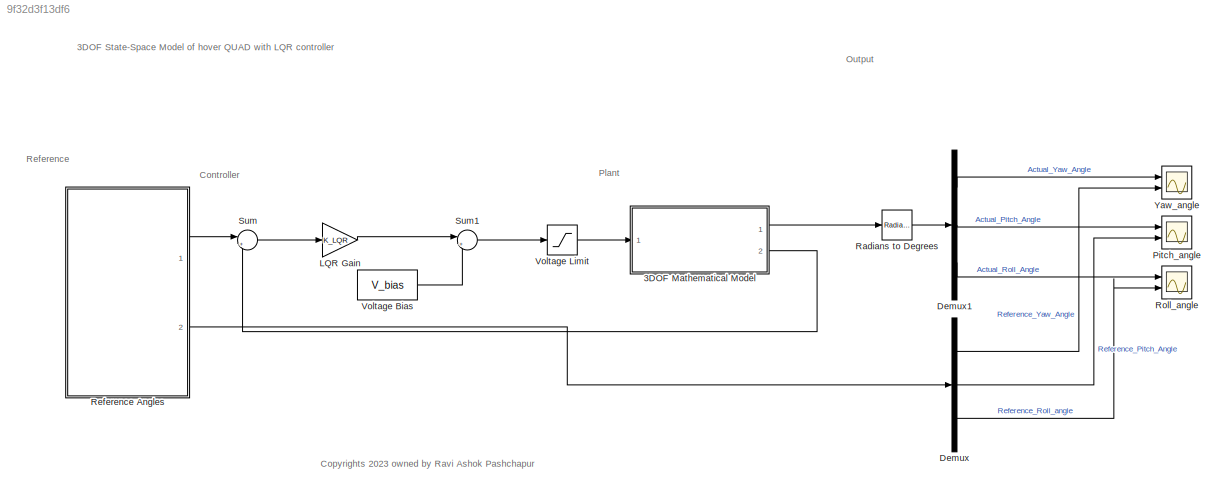
MODEL slx_9f32d3f13df6
KIND model
CONFIG AbsTol = auto
CONFIG EnableMultiTasking = off
CONFIG FixedStep = auto
CONFIG MaxStep = auto
CONFIG MinStep = auto
CONFIG RelTol = 1e-3
CONFIG SampleTimeConstraint = Unconstrained
CONFIG SolverName = VariableStepAuto
CONFIG StartTime = 0.0
CONFIG StopTime = 10.0
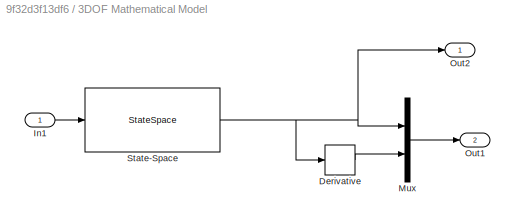
BLOCK [SubSystem] 3DOF Mathematical Model
  Ports = [1, 2]
  RequestExecContextInheritance = off
BLOCK [Derivative] 3DOF Mathematical Model/Derivative
BLOCK [Inport] 3DOF Mathematical Model/In1
BLOCK [Mux] 3DOF Mathematical Model/Mux
  DisplayOption = bar
  Inputs = 2
  Ports = [2, 1]
BLOCK [Outport] 3DOF Mathematical Model/Out1
  Port = 2
BLOCK [Outport] 3DOF Mathematical Model/Out2
BLOCK [StateSpace] 3DOF Mathematical Model/State-Space
  A = A
  B = B
  C = C
  D = D
  InitialCondition = 0
  Ports = [1, 1]
BLOCK [Demux] Demux
  Outputs = 3
  Ports = [1, 3]
BLOCK [Demux] Demux1
  Outputs = 3
  Ports = [1, 3]
BLOCK [Gain] LQR Gain
  Gain = K_LQR
  Multiplication = Matrix(K*u)
  OutDataTypeStr = Inherit: Same as input
  ParamDataTypeStr = Inherit: Same as input
  SaturateOnIntegerOverflow = on
BLOCK [Scope] Pitch_angle
  Floating = off
  NumInputPorts = 2
  Ports = [2]
  ScopeSpecificationString = Simulink.scopes.TimeScopeBlockCfg('CurrentConfiguration', extmgr.ConfigurationSet(extmgr.Configuration('Core','General UI',true),extmgr.Configuration('Core','Source UI',true),extmgr.Configuration('Sources','WiredSimulink',true,'DataLoggingVariableName','ScopeData1'),extmgr.Configuration('Visuals','Time Domain',true,'SerializedDisplays',{struct('MinYLimReal','-0.125','MaxYLimReal','1.125','YLabelRe...<+1419ch>
BLOCK [Reference] Radians to Degrees  REF=simulink_extras/Transformations/Radians
to Degrees
  Ports = [1, 1]
  SourceBlock = simulink_extras/Transformations/Radians\nto Degrees
  SourceProductBaseCode = SL
  SourceType = RadiansToDegrees
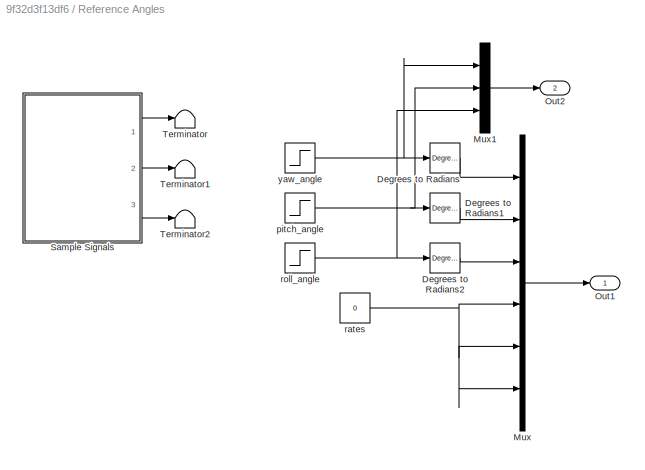
BLOCK [SubSystem] Reference Angles
  Ports = [0, 2]
  RequestExecContextInheritance = off
BLOCK [Reference] Reference Angles/Degrees to Radians  REF=simulink_extras/Transformations/Degrees to
Radians
  Ports = [1, 1]
  SourceBlock = simulink_extras/Transformations/Degrees to\nRadians
  SourceProductBaseCode = SL
  SourceType = DegreesToRadians
BLOCK [Reference] Reference Angles/Degrees to Radians1  REF=simulink_extras/Transformations/Degrees to
Radians
  Ports = [1, 1]
  SourceBlock = simulink_extras/Transformations/Degrees to\nRadians
  SourceProductBaseCode = SL
  SourceType = DegreesToRadians
BLOCK [Reference] Reference Angles/Degrees to Radians2  REF=simulink_extras/Transformations/Degrees to
Radians
  Ports = [1, 1]
  SourceBlock = simulink_extras/Transformations/Degrees to\nRadians
  SourceProductBaseCode = SL
  SourceType = DegreesToRadians
BLOCK [Mux] Reference Angles/Mux
  DisplayOption = bar
  Inputs = 6
  Ports = [6, 1]
BLOCK [Mux] Reference Angles/Mux1
  DisplayOption = bar
  Inputs = 3
  Ports = [3, 1]
BLOCK [Outport] Reference Angles/Out1
BLOCK [Outport] Reference Angles/Out2
  Port = 2
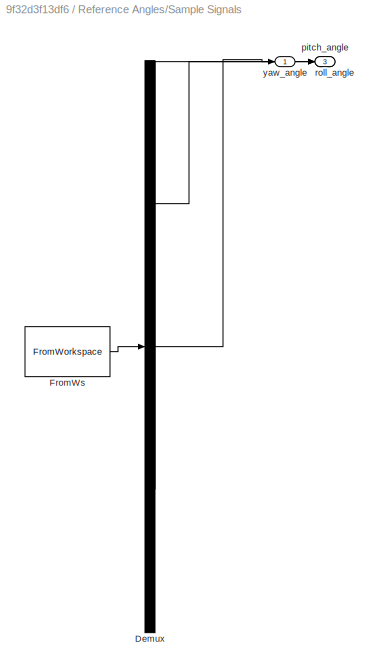
BLOCK [SubSystem] Reference Angles/Sample Signals
  ClipboardFcn = sigbuilder_block('clipboard');
  CloseFcn = sigbuilder_block('close');
  ContinueFcn = sigbuilder_block('continue');
  CopyFcn = sigbuilder_block('copy');
  DeleteFcn = sigbuilder_block('delete');
  LoadFcn = sigbuilder_block('load');
  MaskHideContents = on
  ModelCloseFcn = sigbuilder_block('modelClose');
  NameChangeFcn = sigbuilder_block('namechange');
  OpenFcn = sigbuilder_block('open',[89.25 189 550.5 399.75 ]);
  PauseFcn = sigbuilder_block('pause');
  Ports = [0, 3]
  PreSaveFcn = sigbuilder_block('preSave');
  RequestExecContextInheritance = off
  StartFcn = sigbuilder_block('start');
  StopFcn = sigbuilder_block('stop');
  Tag = STV Subsys
BLOCK [Demux] Reference Angles/Sample Signals/Demux
  DisplayOption = none
  Outputs = 3
  Ports = [1, 3]
  Tag = STV Demux
BLOCK [FromWorkspace] Reference Angles/Sample Signals/FromWs
  Tag = STV FromWs
  VariableName = tuvar
BLOCK [Outport] Reference Angles/Sample Signals/pitch_angle
  Port = 2
  Tag = STV Outport
BLOCK [Outport] Reference Angles/Sample Signals/roll_angle
  Port = 3
  Tag = STV Outport
BLOCK [Outport] Reference Angles/Sample Signals/yaw_angle
  Tag = STV Outport
BLOCK [Terminator] Reference Angles/Terminator
BLOCK [Terminator] Reference Angles/Terminator1
BLOCK [Terminator] Reference Angles/Terminator2
BLOCK [Step] Reference Angles/pitch_angle
  SampleTime = 0.1
  Time = 2
BLOCK [Constant] Reference Angles/rates
  Value = 0
BLOCK [Step] Reference Angles/roll_angle
  SampleTime = 0.08
  Time = 2
BLOCK [Step] Reference Angles/yaw_angle
  SampleTime = 0.04
  Time = 5
BLOCK [Scope] Roll_angle
  Floating = off
  NumInputPorts = 2
  Ports = [2]
  ScopeSpecificationString = Simulink.scopes.TimeScopeBlockCfg('CurrentConfiguration', extmgr.ConfigurationSet(extmgr.Configuration('Core','General UI',true),extmgr.Configuration('Core','Source UI',true),extmgr.Configuration('Sources','WiredSimulink',true,'DataLoggingVariableName','ScopeData2'),extmgr.Configuration('Visuals','Time Domain',true,'SerializedDisplays',{struct('MinYLimReal','-0.125','MaxYLimReal','1.125','YLabelRe...<+1417ch>
BLOCK [Sum] Sum
  Inputs = |+-
  Ports = [2, 1]
BLOCK [Sum] Sum1
  Inputs = |++
  Ports = [2, 1]
BLOCK [Constant] Voltage Bias
  Value = V_bias
BLOCK [Saturate] Voltage Limit
  LowerLimit = 0
  UpperLimit = VMAX_AMP
BLOCK [Scope] Yaw_angle
  Floating = off
  NumInputPorts = 2
  Ports = [2]
  ScopeSpecificationString = Simulink.scopes.TimeScopeBlockCfg('CurrentConfiguration', extmgr.ConfigurationSet(extmgr.Configuration('Core','General UI',true),extmgr.Configuration('Core','Source UI',true),extmgr.Configuration('Sources','WiredSimulink',true),extmgr.Configuration('Visuals','Time Domain',true,'SerializedDisplays',{struct('MinYLimReal','-0.12854','MaxYLimReal','1.15689','YLabelReal','','MinYLimMag','0.00000','MaxY...<+1388ch>
ANNOTATION (root): 3DOF State-Space Model of hover QUAD with LQR controller
ANNOTATION (root): Copyrights 2023 owned by Ravi Ashok Pashchapur
ANNOTATION (root): Controller
ANNOTATION (root): Output
ANNOTATION (root): Plant
ANNOTATION (root): Reference
LINE 3DOF Mathematical Model/Derivative:1 -> 3DOF Mathematical Model/Mux:2
LINE 3DOF Mathematical Model/In1:1 -> 3DOF Mathematical Model/State-Space:1
LINE 3DOF Mathematical Model/Mux:1 -> 3DOF Mathematical Model/Out1:1
NET 3DOF Mathematical Model/State-Space:1 -> 3DOF Mathematical Model/Derivative:1, 3DOF Mathematical Model/Mux:1, 3DOF Mathematical Model/Out2:1
LINE 3DOF Mathematical Model:1 -> Radians to Degrees:1
LINE 3DOF Mathematical Model:2 -> Sum:2
LINE Demux1:1 -> Yaw_angle:1
LINE Demux1:2 -> Pitch_angle:1
LINE Demux1:3 -> Roll_angle:1
LINE Demux:1 -> Yaw_angle:2
LINE Demux:2 -> Pitch_angle:2
LINE Demux:3 -> Roll_angle:2
LINE LQR Gain:1 -> Sum1:1
LINE Radians to Degrees:1 -> Demux1:1
LINE Reference Angles/Degrees to Radians1:1 -> Reference Angles/Mux:2
LINE Reference Angles/Degrees to Radians2:1 -> Reference Angles/Mux:3
LINE Reference Angles/Degrees to Radians:1 -> Reference Angles/Mux:1
LINE Reference Angles/Mux1:1 -> Reference Angles/Out2:1
LINE Reference Angles/Mux:1 -> Reference Angles/Out1:1
LINE Reference Angles/Sample Signals:1 -> Reference Angles/Terminator:1
LINE Reference Angles/Sample Signals:2 -> Reference Angles/Terminator1:1
LINE Reference Angles/Sample Signals:3 -> Reference Angles/Terminator2:1
NET Reference Angles/pitch_angle:1 -> Reference Angles/Degrees to Radians1:1, Reference Angles/Mux1:2
NET Reference Angles/rates:1 -> Reference Angles/Mux:4, Reference Angles/Mux:5, Reference Angles/Mux:6
NET Reference Angles/roll_angle:1 -> Reference Angles/Degrees to Radians2:1, Reference Angles/Mux1:3
NET Reference Angles/yaw_angle:1 -> Reference Angles/Degrees to Radians:1, Reference Angles/Mux1:1
LINE Reference Angles:1 -> Sum:1
LINE Reference Angles:2 -> Demux:1
LINE Sum1:1 -> Voltage Limit:1
LINE Sum:1 -> LQR Gain:1
LINE Voltage Bias:1 -> Sum1:2
LINE Voltage Limit:1 -> 3DOF Mathematical Model:1
note: NET lines group one-source signal fan-out (src -> all destinations, sorted); 1:1 wires keep LINE
